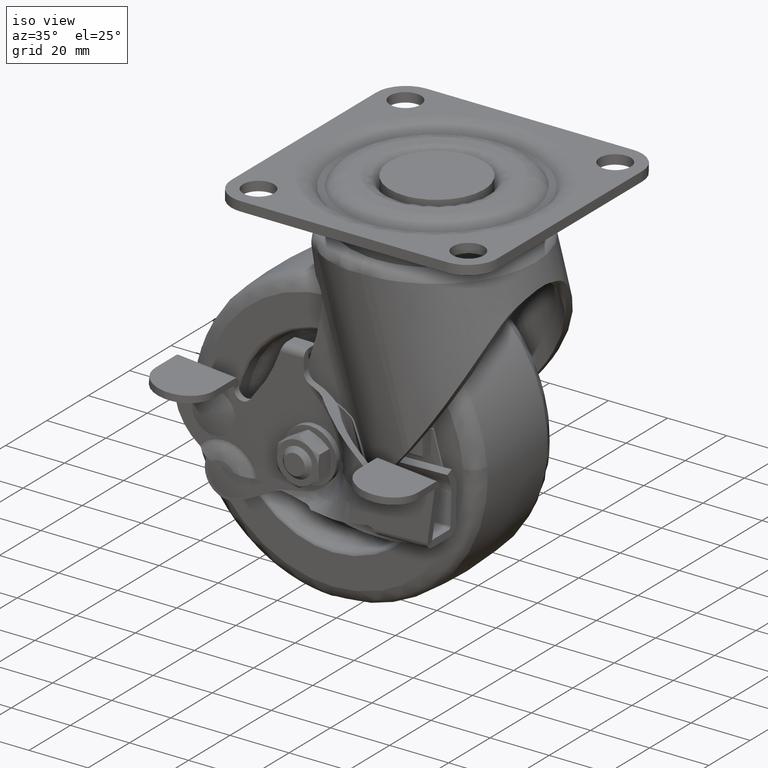
[diagram: clean part render]
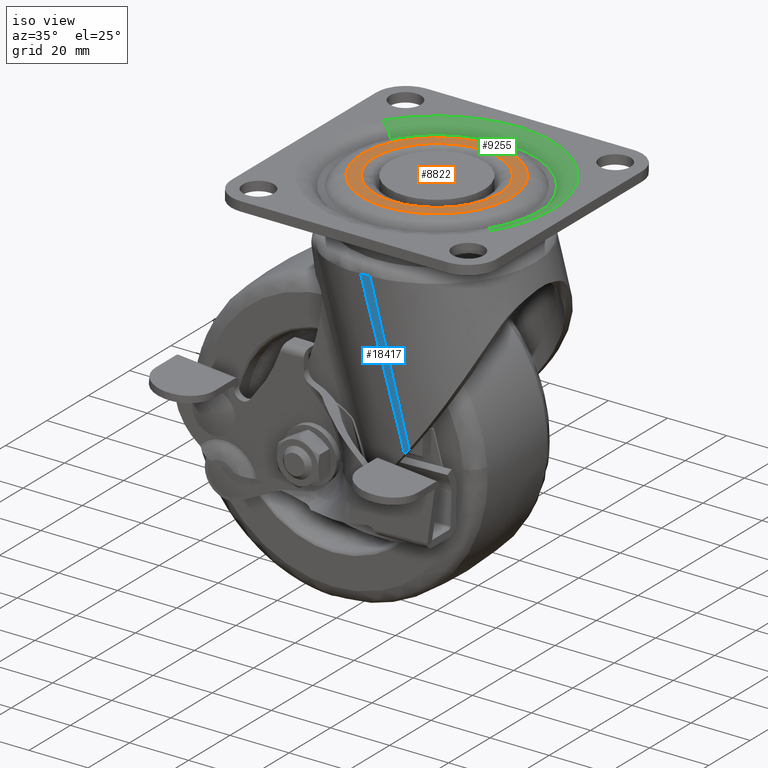
[diagram: same view with three faces highlighted in distinct colors, each labeled with its STEP entity id]
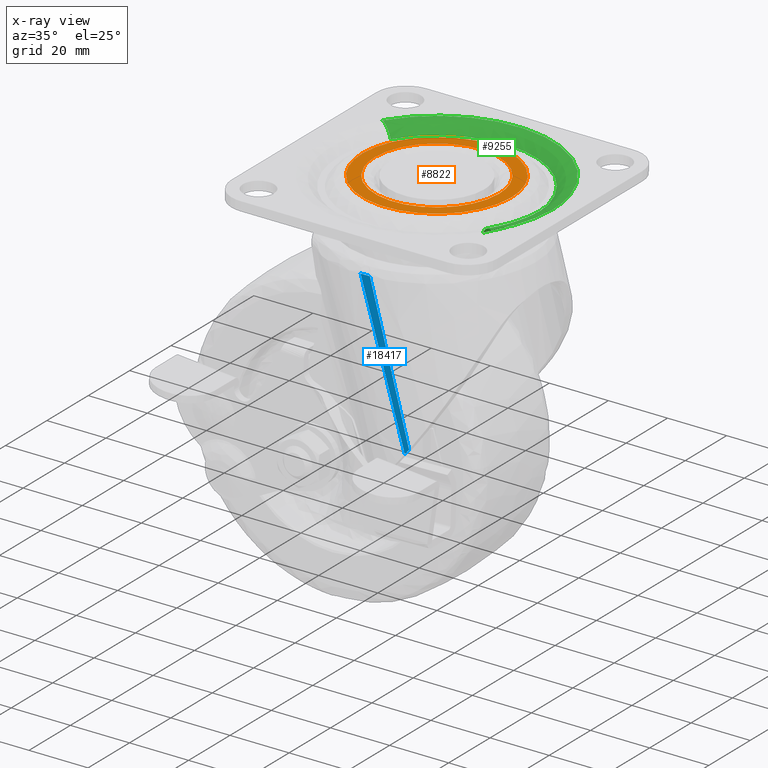
[diagram: x-ray of the same camera — body ghosted, the three highlighted faces saturated]
A machine part, iso view with three faces highlighted in distinct colors.
The next image is the same camera in x-ray (body ghosted, the three faces saturated) — at least one of them is partly hidden behind the body in this view.
Their STEP definitions:

[orange] entity #8822 — the highlighted face is a freeform B-spline surface patch.
#7449=CARTESIAN_POINT('',(-20.998341910827659,-0.263886838429477,-8.797906E-016));
#7450=VERTEX_POINT('',#7449);
#7464=CARTESIAN_POINT('',(21.0,0.0,0.0));
#7465=VERTEX_POINT('',#7464);
#7466=CARTESIAN_POINT('',(21.0,0.0,0.0));
#7467=CARTESIAN_POINT('',(21.000340470123440,-1.582852183036293,-2.012000E-019));
#7468=CARTESIAN_POINT('',(20.693760348667968,-4.277813192391644,-6.977961E-018));
#7469=CARTESIAN_POINT('',(19.622175247555720,-7.674736262092711,-2.987197E-017));
#7470=CARTESIAN_POINT('',(18.457045412395988,-10.110609631237409,-5.459901E-017));
#7471=CARTESIAN_POINT('',(17.138981900484779,-12.216745866392889,-8.248622E-017));
#7472=CARTESIAN_POINT('',(15.504323712122570,-14.257777346453430,-1.169967E-016));
#7473=CARTESIAN_POINT('',(13.516830075508460,-16.150682837138930,-1.588786E-016));
#7474=CARTESIAN_POINT('',(11.299809949967820,-17.765940299667019,-2.055320E-016));
#7475=CARTESIAN_POINT('',(9.123051686601087,-18.967439999537088,-2.512876E-016));
#7476=CARTESIAN_POINT('',(6.704426141824369,-19.956667038178779,-3.020817E-016));
#7477=CARTESIAN_POINT('',(3.973562468719367,-20.700826093836799,-3.593841E-016));
#7478=CARTESIAN_POINT('',(1.160346158053566,-21.029395335907999,-4.183569E-016));
#7479=CARTESIAN_POINT('',(-1.795066923534753,-20.984764825345000,-4.802593E-016));
#7480=CARTESIAN_POINT('',(-4.554625148223674,-20.577579910850311,-5.380112E-016));
#7481=CARTESIAN_POINT('',(-7.715291024274290,-19.623517813118792,-6.040934E-016));
#7482=CARTESIAN_POINT('',(-10.578403143397230,-18.243951350766022,-6.638865E-016));
#7483=CARTESIAN_POINT('',(-13.112934370644750,-16.480304085076810,-7.167462E-016));
#7484=CARTESIAN_POINT('',(-15.076482292675889,-14.689847802092750,-7.576418E-016));
#7485=CARTESIAN_POINT('',(-17.093215571332198,-12.354823148691860,-7.995798E-016));
#7486=CARTESIAN_POINT('',(-18.697721574434500,-9.757683225803937,-8.328482E-016));
#7487=CARTESIAN_POINT('',(-19.998883977438140,-6.632366459636898,-8.596928E-016));
#7488=CARTESIAN_POINT('',(-20.775370906447652,-3.640889905430190,-8.755644E-016));
#7489=CARTESIAN_POINT('',(-20.984425712332150,-1.376049642062166,-8.796455E-016));
#7490=CARTESIAN_POINT('',(-20.998341910827659,-0.263886838429477,-8.797906E-016));
#7491=B_SPLINE_CURVE_WITH_KNOTS('',3,(#7466,#7467,#7468,#7469,#7470,#7471,#7472,#7473,#7474,#7475,#7476,#7477,#7478,#7479,#7480,#7481,#7482,#7483,#7484,#7485,#7486,#7487,#7488,#7489,#7490),.UNSPECIFIED.,.F.,.U.,(4,1,1,1,1,1,1,1,1,1,1,1,1,1,1,1,1,1,1,1,1,1,4),(0.000000232163828,4.748472033081185,8.085356106301362,10.652147347277850,12.833916346566630,15.529036308326230,18.480848366206128,21.047632366665631,23.742794634817130,25.924533982661291,28.876383968265120,32.213173874559331,34.394817948937281,37.731658902993573,40.555164951282421,44.276979912988480,47.228813171710733,49.795599741003592,52.234049125721903,56.469260823186453,58.907739369194303,62.372906190163107,65.709654183953845),.UNSPECIFIED.);
#7492=EDGE_CURVE('',#7465,#7450,#7491,.T.);
#7494=CARTESIAN_POINT('',(20.998341910827659,0.263886838429483,-1.005475E-015));
#7495=VERTEX_POINT('',#7494);
#7496=CARTESIAN_POINT('',(20.998341910827662,0.263886838429483,-1.005475E-015));
#7497=CARTESIAN_POINT('',(20.999999991280667,0.131948628269289,-5.027375E-016));
#7498=CARTESIAN_POINT('',(21.0,0.0,0.0));
#7506=(BOUNDED_CURVE()B_SPLINE_CURVE(2,(#7496,#7497,#7498),.UNSPECIFIED.,.F.,.U.)B_SPLINE_CURVE_WITH_KNOTS((3,3),(0.497784295912530,0.500000000000000),.UNSPECIFIED.)CURVE()GEOMETRIC_REPRESENTATION_ITEM()RATIONAL_B_SPLINE_CURVE((0.994854295622842,0.997404141191531,1.0))REPRESENTATION_ITEM(''));
#7507=EDGE_CURVE('',#7495,#7465,#7506,.T.);
#7551=CARTESIAN_POINT('',(-21.0,0.0,0.0));
#7552=VERTEX_POINT('',#7551);
#7553=CARTESIAN_POINT('',(-21.0,0.0,0.0));
#7554=CARTESIAN_POINT('',(-21.000293822246189,1.582835369329330,-2.310571E-019));
#7555=CARTESIAN_POINT('',(-20.674417034114679,4.448953576594514,-8.463632E-018));
#7556=CARTESIAN_POINT('',(-19.493060333948570,8.040069956635159,-3.728535E-017));
#7557=CARTESIAN_POINT('',(-18.182915891084289,10.596026017381050,-6.903452E-017));
#7558=CARTESIAN_POINT('',(-16.783937716225608,12.700491008084120,-1.028424E-016));
#7559=CARTESIAN_POINT('',(-15.231975516932589,14.532592854013840,-1.402718E-016));
#7560=CARTESIAN_POINT('',(-13.343614115524950,16.276860926546011,-1.857413E-016));
#7561=CARTESIAN_POINT('',(-11.161256932879461,17.866885939597310,-2.382259E-016));
#7562=CARTESIAN_POINT('',(-8.249717845907558,19.428044808505408,-3.081626E-016));
#7563=CARTESIAN_POINT('',(-4.779155866870078,20.570304032469100,-3.914193E-016));
#7564=CARTESIAN_POINT('',(-0.864718752161397,21.100447719358769,-4.852102E-016));
#7565=CARTESIAN_POINT('',(2.484046218915255,20.937185041552478,-5.653546E-016));
#7566=CARTESIAN_POINT('',(5.926216661442997,20.233981105766460,-6.476540E-016));
#7567=CARTESIAN_POINT('',(8.828852719647221,19.160353318606099,-7.169813E-016));
#7568=CARTESIAN_POINT('',(11.769524746378940,17.479234073435901,-7.871277E-016));
#7569=CARTESIAN_POINT('',(14.508914701881331,15.340655524201370,-8.523867E-016));
#7570=CARTESIAN_POINT('',(16.768727015007581,12.803213876658580,-9.061047E-016));
#7571=CARTESIAN_POINT('',(18.300196982350158,10.374052141658391,-9.424025E-016));
#7572=CARTESIAN_POINT('',(19.482887505917692,7.997647121514292,-9.703585E-016));
#7573=CARTESIAN_POINT('',(20.607412490782529,4.751063131529828,-9.967911E-016));
#7574=CARTESIAN_POINT('',(20.978248730583729,1.889403945957795,-1.005238E-015));
#7575=CARTESIAN_POINT('',(20.998341910827659,0.263886838429483,-1.005475E-015));
#7576=B_SPLINE_CURVE_WITH_KNOTS('',3,(#7553,#7554,#7555,#7556,#7557,#7558,#7559,#7560,#7561,#7562,#7563,#7564,#7565,#7566,#7567,#7568,#7569,#7570,#7571,#7572,#7573,#7574,#7575),.UNSPECIFIED.,.F.,.U.,(4,1,1,1,1,1,1,1,1,1,1,1,1,1,1,1,1,1,1,1,4),(0.000000232211534,4.748472033123669,8.598673611649808,11.293840704446991,13.347256093038130,16.170736711396660,18.480848366233911,21.047632366691470,24.256120299416761,28.362976603786830,31.956537843519289,36.063292714070677,38.373344780595552,42.480257873624780,45.303714383167012,48.512205092274300,52.875743762413883,55.442524389548652,57.110952621737113,60.832787255361083,65.709654183953887),.UNSPECIFIED.);
#7577=EDGE_CURVE('',#7552,#7495,#7576,.T.);
#7579=CARTESIAN_POINT('',(-20.998341910827662,-0.263886838429477,-8.797906E-016));
#7580=CARTESIAN_POINT('',(-20.999999991280657,-0.131948628269287,-4.398953E-016));
#7581=CARTESIAN_POINT('',(-21.0,0.0,0.0));
#7589=(BOUNDED_CURVE()B_SPLINE_CURVE(2,(#7579,#7580,#7581),.UNSPECIFIED.,.F.,.U.)B_SPLINE_CURVE_WITH_KNOTS((3,3),(0.997784295912530,1.0),.UNSPECIFIED.)CURVE()GEOMETRIC_REPRESENTATION_ITEM()RATIONAL_B_SPLINE_CURVE((0.994854295622842,0.997404141191531,1.0))REPRESENTATION_ITEM(''));
#7590=EDGE_CURVE('',#7450,#7552,#7589,.T.);
#8727=CARTESIAN_POINT('',(-27.740824858823451,27.732066144962079,0.0));
#8728=CARTESIAN_POINT('',(27.740826211795369,27.732066144962069,0.0));
#8729=CARTESIAN_POINT('',(-27.740824858823451,-27.732065243265520,0.0));
#8730=CARTESIAN_POINT('',(27.740826211795369,-27.732065243265520,0.0));
#8731=B_SPLINE_SURFACE_WITH_KNOTS('',1,1,((#8727,#8729),(#8728,#8730)),.UNSPECIFIED.,.F.,.F.,.U.,(2,2),(2,2),(0.0,55.481651070618817),(0.0,55.464131388227592),.UNSPECIFIED.);
#8732=CARTESIAN_POINT('',(-25.221224617320399,0.0,0.0));
#8733=VERTEX_POINT('',#8732);
#8734=CARTESIAN_POINT('',(-21.294984259940460,-13.514207952259239,-1.340272E-015));
#8735=VERTEX_POINT('',#8734);
#8736=CARTESIAN_POINT('',(-25.221224617320399,0.0,0.0));
#8737=CARTESIAN_POINT('',(-25.221224617409874,-7.327443111057485,-6.701361E-016));
#8738=CARTESIAN_POINT('',(-21.294984259940467,-13.514207952259239,-1.340272E-015));
#8746=(BOUNDED_CURVE()B_SPLINE_CURVE(2,(#8736,#8737,#8738),.UNSPECIFIED.,.F.,.U.)B_SPLINE_CURVE_WITH_KNOTS((3,3),(0.0,0.091683542668401),.UNSPECIFIED.)CURVE()GEOMETRIC_REPRESENTATION_ITEM()RATIONAL_B_SPLINE_CURVE((1.0,0.892586048302526,0.863956829594148))REPRESENTATION_ITEM(''));
#8747=EDGE_CURVE('',#8733,#8735,#8746,.T.);
#8748=ORIENTED_EDGE('',*,*,#8747,.T.);
#8749=CARTESIAN_POINT('',(25.221224617320399,0.0,0.0));
#8750=VERTEX_POINT('',#8749);
#8751=CARTESIAN_POINT('',(-21.294984259940460,-13.514207952259239,-1.340272E-015));
#8752=CARTESIAN_POINT('',(-20.207434167089311,-15.228809645810349,-1.324611E-015));
#8753=CARTESIAN_POINT('',(-17.884966557735289,-18.063198521740361,-1.284782E-015));
#8754=CARTESIAN_POINT('',(-14.215896930790279,-20.959176454444009,-1.209649E-015));
#8755=CARTESIAN_POINT('',(-11.149917103198771,-22.682945126897959,-1.141492E-015));
#8756=CARTESIAN_POINT('',(-8.300626860666466,-23.884342340628429,-1.075059E-015));
#8757=CARTESIAN_POINT('',(-5.199592980182760,-24.761842211337331,-9.994373E-016));
#8758=CARTESIAN_POINT('',(-2.049786430124818,-25.197253189320350,-9.191070E-016));
#8759=CARTESIAN_POINT('',(1.253132151830375,-25.260518552156110,-8.318358E-016));
#8760=CARTESIAN_POINT('',(4.416276243155769,-24.913885367357949,-7.451142E-016));
#8761=CARTESIAN_POINT('',(8.196212528934982,-23.958760157093469,-6.373071E-016));
#8762=CARTESIAN_POINT('',(11.755548976180011,-22.449804963642599,-5.310862E-016));
#8763=CARTESIAN_POINT('',(15.185085940779780,-20.253718642992990,-4.230098E-016));
#8764=CARTESIAN_POINT('',(17.772435323119780,-17.993673464256389,-3.368170E-016));
#8765=CARTESIAN_POINT('',(19.990672021515689,-15.487537953110470,-2.585318E-016));
#8766=CARTESIAN_POINT('',(21.663640064472329,-13.035538794203241,-1.951526E-016));
#8767=CARTESIAN_POINT('',(23.124803310914089,-10.215020243721050,-1.345563E-016));
#8768=CARTESIAN_POINT('',(24.199466997948150,-7.357831827063614,-8.394642E-017));
#8769=CARTESIAN_POINT('',(25.016998703726120,-3.849228993522520,-3.514006E-017));
#8770=CARTESIAN_POINT('',(25.221338024300159,-1.395896573652002,-1.077246E-017));
#8771=CARTESIAN_POINT('',(25.221224617320399,0.0,0.0));
#8772=B_SPLINE_CURVE_WITH_KNOTS('',3,(#8751,#8752,#8753,#8754,#8755,#8756,#8757,#8758,#8759,#8760,#8761,#8762,#8763,#8764,#8765,#8766,#8767,#8768,#8769,#8770,#8771),.UNSPECIFIED.,.F.,.U.,(4,1,1,1,1,1,1,1,1,1,1,1,1,1,1,1,1,1,4),(0.000000172696105,6.091187145825103,10.913379434503859,13.958971157454069,16.623911694112611,20.177115806103711,23.603414671793502,26.141223713291399,30.075133028191662,33.120740595634473,37.816057122498833,41.623065395223733,45.303174205560069,48.094982404370271,51.648189441728597,54.186197203156368,57.612498911306830,60.784941393616371,64.972615990855275),.UNSPECIFIED.);
#8773=EDGE_CURVE('',#8735,#8750,#8772,.T.);
#8774=ORIENTED_EDGE('',*,*,#8773,.T.);
#8775=CARTESIAN_POINT('',(21.294984259940460,13.514207952259250,-1.218429E-015));
#8776=VERTEX_POINT('',#8775);
#8777=CARTESIAN_POINT('',(25.221224617320399,0.0,0.0));
#8778=CARTESIAN_POINT('',(25.221224617409874,7.327443111057486,-6.092146E-016));
#8779=CARTESIAN_POINT('',(21.294984259940456,13.514207952259241,-1.218429E-015));
#8787=(BOUNDED_CURVE()B_SPLINE_CURVE(2,(#8777,#8778,#8779),.UNSPECIFIED.,.F.,.U.)B_SPLINE_CURVE_WITH_KNOTS((3,3),(0.500000000000000,0.591683542668401),.UNSPECIFIED.)CURVE()GEOMETRIC_REPRESENTATION_ITEM()RATIONAL_B_SPLINE_CURVE((1.0,0.892586048302526,0.863956829594147))REPRESENTATION_ITEM(''));
#8788=EDGE_CURVE('',#8750,#8776,#8787,.T.);
#8789=ORIENTED_EDGE('',*,*,#8788,.T.);
#8790=CARTESIAN_POINT('',(21.294984259940460,13.514207952259250,-1.218429E-015));
#8791=CARTESIAN_POINT('',(20.615083547976042,14.585698184669260,-1.209526E-015));
#8792=CARTESIAN_POINT('',(19.245218870741581,16.421665646762019,-1.189321E-015));
#8793=CARTESIAN_POINT('',(16.631106506780430,19.081227072066739,-1.144841E-015));
#8794=CARTESIAN_POINT('',(13.754113366948770,21.259612838293570,-1.090635E-015));
#8795=CARTESIAN_POINT('',(10.806063269036430,22.849472804713120,-1.030582E-015));
#8796=CARTESIAN_POINT('',(8.015699578232711,23.968518372961618,-9.710347E-016));
#8797=CARTESIAN_POINT('',(4.748010242131242,24.875549920543168,-8.984694E-016));
#8798=CARTESIAN_POINT('',(1.077162905011567,25.298572092331771,-8.127693E-016));
#8799=CARTESIAN_POINT('',(-2.988604101745370,25.141047875177211,-7.134559E-016));
#8800=CARTESIAN_POINT('',(-6.950358452383212,24.380640013717230,-6.124241E-016));
#8801=CARTESIAN_POINT('',(-10.757252199037840,22.922529132705598,-5.102367E-016));
#8802=CARTESIAN_POINT('',(-13.775097504230249,21.197605683039939,-4.252363E-016));
#8803=CARTESIAN_POINT('',(-16.498353252511141,19.180839574870259,-3.453036E-016));
#8804=CARTESIAN_POINT('',(-19.049831679992181,16.690381665175440,-2.661959E-016));
#8805=CARTESIAN_POINT('',(-21.250781834216230,13.727902938062529,-1.922427E-016));
#8806=CARTESIAN_POINT('',(-23.048992541947779,10.460886893197390,-1.258805E-016));
#8807=CARTESIAN_POINT('',(-24.132734764364081,7.557356900185794,-7.932703E-017));
#8808=CARTESIAN_POINT('',(-24.996277040869408,3.933778114479755,-3.303937E-017));
#8809=CARTESIAN_POINT('',(-25.221465537014151,1.649692804000249,-1.157111E-017));
#8810=CARTESIAN_POINT('',(-25.221224617320399,0.0,0.0));
#8811=B_SPLINE_CURVE_WITH_KNOTS('',3,(#8790,#8791,#8792,#8793,#8794,#8795,#8796,#8797,#8798,#8799,#8800,#8801,#8802,#8803,#8804,#8805,#8806,#8807,#8808,#8809,#8810),.UNSPECIFIED.,.F.,.U.,(4,1,1,1,1,1,1,1,1,1,1,1,1,1,1,1,1,1,4),(0.000000172700652,3.806989552141488,6.852586791036977,11.167171802431250,14.593501808249220,16.877704849599240,20.177115806109661,24.745435326175478,27.917876899288490,32.359363678383019,36.800888246704233,40.100283887726057,42.765172755099151,46.952876375915338,50.759874364435518,53.805466290053253,58.120062524240410,60.023603979925447,64.972615990855289),.UNSPECIFIED.);
#8812=EDGE_CURVE('',#8776,#8733,#8811,.T.);
#8813=ORIENTED_EDGE('',*,*,#8812,.T.);
#8814=EDGE_LOOP('',(#8748,#8774,#8789,#8813));
#8815=FACE_OUTER_BOUND('',#8814,.T.);
#8816=ORIENTED_EDGE('',*,*,#7492,.T.);
#8817=ORIENTED_EDGE('',*,*,#7590,.T.);
#8818=ORIENTED_EDGE('',*,*,#7577,.T.);
#8819=ORIENTED_EDGE('',*,*,#7507,.T.);
#8820=EDGE_LOOP('',(#8816,#8817,#8818,#8819));
#8821=FACE_BOUND('',#8820,.T.);
#8822=ADVANCED_FACE('',(#8815,#8821),#8731,.F.);

[blue] entity #18417 — the highlighted face is a freeform B-spline surface patch.
#18370=CARTESIAN_POINT('',(-3.793676026061991,-32.649999999999999,-15.745984084465659));
#18371=CARTESIAN_POINT('',(-3.793676026061991,-32.649999999999999,-72.178958562413541));
#18372=CARTESIAN_POINT('',(14.276322456446151,-32.649999999999999,-15.745984084465659));
#18373=CARTESIAN_POINT('',(14.276322456446151,-32.649999999999999,-72.178958562413541));
#18374=B_SPLINE_SURFACE_WITH_KNOTS('',1,1,((#18370,#18372),(#18371,#18373)),.UNSPECIFIED.,.F.,.F.,.U.,(2,2),(2,2),(0.0,56.432974477947880),(0.0,18.069998482508151),.UNSPECIFIED.);
#18375=CARTESIAN_POINT('',(13.455705259406781,-32.649999999999999,-67.802231223615095));
#18376=VERTEX_POINT('',#18375);
#18377=CARTESIAN_POINT('',(0.193971008628356,-32.649999999999999,-18.308787001449801));
#18378=VERTEX_POINT('',#18377);
#18379=CARTESIAN_POINT('',(13.455705259406781,-32.649999999999999,-67.802231223615095));
#18380=CARTESIAN_POINT('',(0.193971008628356,-32.649999999999999,-18.308787001449801));
#18381=QUASI_UNIFORM_CURVE('',1,(#18379,#18380),.UNSPECIFIED.,.F.,.U.);
#18382=EDGE_CURVE('',#18376,#18378,#18381,.T.);
#18383=ORIENTED_EDGE('',*,*,#18382,.T.);
#18384=CARTESIAN_POINT('',(-2.973059269676420,-32.649999999999999,-18.338955509171949));
#18385=VERTEX_POINT('',#18384);
#18386=CARTESIAN_POINT('',(0.193971008628356,-32.649999999999999,-18.308787001449801));
#18387=CARTESIAN_POINT('',(-0.333915062746067,-32.650000000000013,-18.308010425836699));
#18388=CARTESIAN_POINT('',(-0.861774853311601,-32.650000000000013,-18.310486092569199));
#18389=CARTESIAN_POINT('',(-1.917448290048725,-32.649999999999991,-18.321147781169561));
#18390=CARTESIAN_POINT('',(-2.445266797106990,-32.649999999999999,-18.329327419740199));
#18391=CARTESIAN_POINT('',(-2.973059269676365,-32.649999999999999,-18.338955509171999));
#18392=B_SPLINE_CURVE_WITH_KNOTS('',3,(#18386,#18387,#18388,#18389,#18390,#18391),.UNSPECIFIED.,.F.,.U.,(4,2,4),(0.0,0.500000000000000,1.0),.UNSPECIFIED.);
#18393=EDGE_CURVE('',#18378,#18385,#18392,.T.);
#18394=ORIENTED_EDGE('',*,*,#18393,.T.);
#18395=CARTESIAN_POINT('',(12.006281728386600,-32.649999999999999,-69.616154288712309));
#18396=VERTEX_POINT('',#18395);
#18397=CARTESIAN_POINT('',(-2.973059269676420,-32.649999999999999,-18.338955509171949));
#18398=CARTESIAN_POINT('',(12.006281728386600,-32.649999999999999,-69.616154288712309));
#18399=QUASI_UNIFORM_CURVE('',1,(#18397,#18398),.UNSPECIFIED.,.F.,.U.);
#18400=EDGE_CURVE('',#18385,#18396,#18399,.T.);
#18401=ORIENTED_EDGE('',*,*,#18400,.T.);
#18402=CARTESIAN_POINT('',(12.006281728386570,-32.649999999999999,-69.616154288712281));
#18403=CARTESIAN_POINT('',(12.739917059264450,-32.650000000000006,-68.716323171931577));
#18404=CARTESIAN_POINT('',(13.455705259406770,-32.649999999999999,-67.802231223615081));
#18412=(BOUNDED_CURVE()B_SPLINE_CURVE(2,(#18402,#18403,#18404),.UNSPECIFIED.,.F.,.U.)CURVE()GEOMETRIC_REPRESENTATION_ITEM()QUASI_UNIFORM_CURVE()RATIONAL_B_SPLINE_CURVE((1.0,0.999951600869677,1.0))REPRESENTATION_ITEM(''));
#18413=EDGE_CURVE('',#18396,#18376,#18412,.T.);
#18414=ORIENTED_EDGE('',*,*,#18413,.T.);
#18415=EDGE_LOOP('',(#18383,#18394,#18401,#18414));
#18416=FACE_OUTER_BOUND('',#18415,.T.);
#18417=ADVANCED_FACE('',(#18416),#18374,.T.);

[green] entity #9255 — the highlighted face is a freeform B-spline surface patch.
#8993=CARTESIAN_POINT('',(28.073903523258100,-17.816240933295472,-3.199999999384958));
#8994=VERTEX_POINT('',#8993);
#9024=CARTESIAN_POINT('',(33.250000000000000,0.0,-3.200000000000000));
#9025=VERTEX_POINT('',#9024);
#9026=CARTESIAN_POINT('',(33.250000000000000,0.0,-3.200000000000000));
#9027=CARTESIAN_POINT('',(33.250000000167823,-9.660017986462520,-3.199999999692479));
#9028=CARTESIAN_POINT('',(28.073903523258092,-17.816240933295475,-3.199999999384958));
#9036=(BOUNDED_CURVE()B_SPLINE_CURVE(2,(#9026,#9027,#9028),.UNSPECIFIED.,.F.,.U.)B_SPLINE_CURVE_WITH_KNOTS((3,3),(0.500000000000000,0.591683542668558),.UNSPECIFIED.)CURVE()GEOMETRIC_REPRESENTATION_ITEM()RATIONAL_B_SPLINE_CURVE((1.0,0.892586048302342,0.863956829594050))REPRESENTATION_ITEM(''));
#9037=EDGE_CURVE('',#9025,#8994,#9036,.T.);
#9039=CARTESIAN_POINT('',(-28.073903523258089,17.816240933295479,-3.199999999384958));
#9040=VERTEX_POINT('',#9039);
#9041=CARTESIAN_POINT('',(-28.073903523258089,17.816240933295479,-3.199999999384958));
#9042=CARTESIAN_POINT('',(-26.849107258230859,19.746936406022250,-3.199999999391100));
#9043=CARTESIAN_POINT('',(-24.867713161610400,22.253997536689390,-3.199999999402663));
#9044=CARTESIAN_POINT('',(-21.708561128472969,25.249059588864061,-3.199999999423877));
#9045=CARTESIAN_POINT('',(-18.458601419772592,27.801428812705449,-3.199999999447031));
#9046=CARTESIAN_POINT('',(-13.937837047291710,30.388569679374470,-3.199999999481957));
#9047=CARTESIAN_POINT('',(-8.657513356747733,32.248180966671143,-3.199999999525744));
#9048=CARTESIAN_POINT('',(-4.037540426989213,33.089467240766943,-3.199999999566224));
#9049=CARTESIAN_POINT('',(0.143904118578630,33.327542375149079,-3.199999999604261));
#9050=CARTESIAN_POINT('',(4.383123486582925,33.067148225000253,-3.199999999644168));
#9051=CARTESIAN_POINT('',(9.260538509249153,32.079935485012541,-3.199999999691912));
#9052=CARTESIAN_POINT('',(13.925635065397380,30.333475461873292,-3.199999999739806));
#9053=CARTESIAN_POINT('',(18.610099680980390,27.718351772775009,-3.199999999790126));
#9054=CARTESIAN_POINT('',(22.355017537793881,24.780984564110270,-3.199999999832579));
#9055=CARTESIAN_POINT('',(25.923445726294162,21.005604321689049,-3.199999999875953));
#9056=CARTESIAN_POINT('',(28.438120258732951,17.437003622986602,-3.199999999908573));
#9057=CARTESIAN_POINT('',(30.431859081083619,13.564276000144510,-3.199999999937539));
#9058=CARTESIAN_POINT('',(31.966432384112469,9.546183250345868,-3.199999999962211));
#9059=CARTESIAN_POINT('',(33.010027411472457,4.963072791223418,-3.199999999985203));
#9060=CARTESIAN_POINT('',(33.250051515519388,1.561402213937069,-3.199999999994969));
#9061=CARTESIAN_POINT('',(33.250000000000000,0.0,-3.200000000000000));
#9062=B_SPLINE_CURVE_WITH_KNOTS('',3,(#9041,#9042,#9043,#9044,#9045,#9046,#9047,#9048,#9049,#9050,#9051,#9052,#9053,#9054,#9055,#9056,#9057,#9058,#9059,#9060,#9061),.UNSPECIFIED.,.F.,.U.,(4,1,1,1,1,1,1,1,1,1,1,1,1,1,1,1,1,1,4),(0.000000152696984,6.859141785623976,9.535882704593774,13.049107994802680,19.239069835761040,25.094472908298641,29.778782457176138,33.292008513561001,37.641598202951933,42.493207300962467,48.181275650586159,52.530980553857113,58.553643245945047,62.401458791235257,68.089529764534504,71.602757138493473,75.450601329923302,80.971400765259361,85.655614050301324),.UNSPECIFIED.);
#9063=EDGE_CURVE('',#9040,#9025,#9062,.T.);
#9112=CARTESIAN_POINT('',(-33.037517746270510,20.966246304744288,-1.218429E-015));
#9113=VERTEX_POINT('',#9112);
#9114=CARTESIAN_POINT('',(-28.073903523258089,17.816240933295479,-3.199999999384958));
#9115=CARTESIAN_POINT('',(-29.820360379689060,18.924576156695124,-1.287357E-011));
#9116=CARTESIAN_POINT('',(-33.037517746270510,20.966246304744288,-1.218429E-015));
#9124=(BOUNDED_CURVE()B_SPLINE_CURVE(2,(#9114,#9115,#9116),.UNSPECIFIED.,.F.,.U.)B_SPLINE_CURVE_WITH_KNOTS((3,3),(-1.623849345308451,-0.381629915444320),.UNSPECIFIED.)CURVE()GEOMETRIC_REPRESENTATION_ITEM()RATIONAL_B_SPLINE_CURVE((0.912170760361326,0.800738841821910,0.911192055258162))REPRESENTATION_ITEM(''));
#9125=EDGE_CURVE('',#9040,#9113,#9124,.T.);
#9142=CARTESIAN_POINT('',(33.037517746270517,-20.966246304744299,-1.340272E-015));
#9143=VERTEX_POINT('',#9142);
#9169=CARTESIAN_POINT('',(28.073903523258092,-17.816240933295475,-3.199999999384958));
#9170=CARTESIAN_POINT('',(29.820360379689067,-18.924576156695128,-1.286431E-011));
#9171=CARTESIAN_POINT('',(33.037517746270517,-20.966246304744296,-1.340272E-015));
#9179=(BOUNDED_CURVE()B_SPLINE_CURVE(2,(#9169,#9170,#9171),.UNSPECIFIED.,.F.,.U.)B_SPLINE_CURVE_WITH_KNOTS((3,3),(-1.623849345308451,-0.381629915444317),.UNSPECIFIED.)CURVE()GEOMETRIC_REPRESENTATION_ITEM()RATIONAL_B_SPLINE_CURVE((0.912170760361326,0.800738841821909,0.911192055258162))REPRESENTATION_ITEM(''));
#9180=EDGE_CURVE('',#8994,#9143,#9179,.T.);
#9185=CARTESIAN_POINT('',(-27.927344243637709,17.723231586170964,-3.483043601660620));
#9186=CARTESIAN_POINT('',(-10.204112657466739,45.650575829808680,-3.483043601660623));
#9187=CARTESIAN_POINT('',(17.723231586170964,27.927344243637709,-3.483043601660620));
#9188=CARTESIAN_POINT('',(45.650575829808680,10.204112657466743,-3.483043601660623));
#9189=CARTESIAN_POINT('',(27.927344243637720,-17.723231586170964,-3.483043601660620));
#9190=CARTESIAN_POINT('',(-29.731409241718012,18.868126047976673,0.193997929824622));
#9191=CARTESIAN_POINT('',(-10.863283193741331,48.599535289694671,0.193997929824622));
#9192=CARTESIAN_POINT('',(18.868126047976673,29.731409241718012,0.193997929824622));
#9193=CARTESIAN_POINT('',(48.599535289694671,10.863283193741335,0.193997929824622));
#9194=CARTESIAN_POINT('',(29.731409241718012,-18.868126047976673,0.193997929824622));
#9195=CARTESIAN_POINT('',(-33.318094854310381,21.144305951951743,-0.007892217042416));
#9196=CARTESIAN_POINT('',(-12.173788902358632,54.462400806262117,-0.007892217042416));
#9197=CARTESIAN_POINT('',(21.144305951951743,33.318094854310381,-0.007892217042416));
#9198=CARTESIAN_POINT('',(54.462400806262117,12.173788902358638,-0.007892217042416));
#9199=CARTESIAN_POINT('',(33.318094854310381,-21.144305951951743,-0.007892217042416));
#9207=(BOUNDED_SURFACE()B_SPLINE_SURFACE(2,2,((#9185,#9190,#9195),(#9186,#9191,#9196),(#9187,#9192,#9197),(#9188,#9193,#9198),(#9189,#9194,#9199)),.UNSPECIFIED.,.F.,.F.,.U.)B_SPLINE_SURFACE_WITH_KNOTS((3,2,3),(3,3),(0.0,65.381264052745820,130.762528105491610),(0.0,7.838895993937537),.UNSPECIFIED.)GEOMETRIC_REPRESENTATION_ITEM()RATIONAL_B_SPLINE_SURFACE(((0.923856422653232,0.789102070349369,0.922779935982609),(0.653265141300846,0.557979424992383,0.652503950276191),(0.923856422653232,0.789102070349369,0.922779935982609),(0.653265141300846,0.557979424992383,0.652503950276191),(0.923856422653232,0.789102070349369,0.922779935982609)))REPRESENTATION_ITEM('')SURFACE());
#9208=ORIENTED_EDGE('',*,*,#9037,.T.);
#9209=ORIENTED_EDGE('',*,*,#9180,.T.);
#9210=CARTESIAN_POINT('',(39.128775382679599,0.0,0.0));
#9211=VERTEX_POINT('',#9210);
#9212=CARTESIAN_POINT('',(39.128775382679599,0.0,0.0));
#9213=CARTESIAN_POINT('',(39.128775382669623,-11.367960119694494,-6.701361E-016));
#9214=CARTESIAN_POINT('',(33.037517746270524,-20.966246304744296,-1.340272E-015));
#9222=(BOUNDED_CURVE()B_SPLINE_CURVE(2,(#9212,#9213,#9214),.UNSPECIFIED.,.F.,.U.)B_SPLINE_CURVE_WITH_KNOTS((3,3),(0.500000000000000,0.591683542668403),.UNSPECIFIED.)CURVE()GEOMETRIC_REPRESENTATION_ITEM()RATIONAL_B_SPLINE_CURVE((1.0,0.892586048302524,0.863956829594146))REPRESENTATION_ITEM(''));
#9223=EDGE_CURVE('',#9211,#9143,#9222,.T.);
#9224=ORIENTED_EDGE('',*,*,#9223,.F.);
#9225=CARTESIAN_POINT('',(-33.037517746270510,20.966246304744288,-1.218429E-015));
#9226=CARTESIAN_POINT('',(-31.877254212706521,22.794841618606149,-1.208636E-015));
#9227=CARTESIAN_POINT('',(-29.808790803291469,25.523749750091920,-1.188775E-015));
#9228=CARTESIAN_POINT('',(-25.930214458370269,29.449828197745578,-1.146146E-015));
#9229=CARTESIAN_POINT('',(-22.039008143855231,32.489654342199429,-1.099313E-015));
#9230=CARTESIAN_POINT('',(-17.480558724580799,35.113381313389013,-1.040208E-015));
#9231=CARTESIAN_POINT('',(-12.518315271569570,37.220537193959522,-9.724798E-016));
#9232=CARTESIAN_POINT('',(-7.420333942436904,38.552843125302537,-8.991334E-016));
#9233=CARTESIAN_POINT('',(-2.784505878288496,39.086911933695532,-8.293718E-016));
#9234=CARTESIAN_POINT('',(1.154828416365573,39.172238464740893,-7.684243E-016));
#9235=CARTESIAN_POINT('',(6.005948740040730,38.813190478293230,-6.912708E-016));
#9236=CARTESIAN_POINT('',(11.019149217666889,37.679656573945408,-6.080905E-016));
#9237=CARTESIAN_POINT('',(15.506505768042960,35.986605872074563,-5.305665E-016));
#9238=CARTESIAN_POINT('',(19.403414339025929,34.085955432847747,-4.612963E-016));
#9239=CARTESIAN_POINT('',(23.054764965309740,31.734947705170459,-3.938123E-016));
#9240=CARTESIAN_POINT('',(26.846272228726850,28.587735962420091,-3.205445E-016));
#9241=CARTESIAN_POINT('',(29.753308871323089,25.542966699925248,-2.615109E-016));
#9242=CARTESIAN_POINT('',(32.810802408740962,21.513266026445329,-1.956796E-016));
#9243=CARTESIAN_POINT('',(35.409977552523962,17.008071119558782,-1.348332E-016));
#9244=CARTESIAN_POINT('',(37.312463653237486,12.099909206526389,-8.301117E-017));
#9245=CARTESIAN_POINT('',(38.737625363399090,6.496701893491511,-3.547687E-017));
#9246=CARTESIAN_POINT('',(39.129136031799931,2.625026084822789,-1.186830E-017));
#9247=CARTESIAN_POINT('',(39.128775382679599,0.0,0.0));
#9248=B_SPLINE_CURVE_WITH_KNOTS('',3,(#9225,#9226,#9227,#9228,#9229,#9230,#9231,#9232,#9233,#9234,#9235,#9236,#9237,#9238,#9239,#9240,#9241,#9242,#9243,#9244,#9245,#9246,#9247),.UNSPECIFIED.,.F.,.U.,(4,1,1,1,1,1,1,1,1,1,1,1,1,1,1,1,1,1,1,1,4),(0.000000128482924,6.496872237621773,10.237505388186610,16.537518871914529,21.262508115316169,25.987554130043382,32.681314917647022,37.012507059727866,39.965548626458201,44.493720898569109,51.581183971040659,55.321856072964053,58.865604630790372,64.574970077279829,68.315611397655204,73.631242711053133,77.174998922028436,83.475031356824999,89.184421276295836,92.925004857657072,100.799978418896100),.UNSPECIFIED.);
#9249=EDGE_CURVE('',#9113,#9211,#9248,.T.);
#9250=ORIENTED_EDGE('',*,*,#9249,.F.);
#9251=ORIENTED_EDGE('',*,*,#9125,.F.);
#9252=ORIENTED_EDGE('',*,*,#9063,.T.);
#9253=EDGE_LOOP('',(#9208,#9209,#9224,#9250,#9251,#9252));
#9254=FACE_OUTER_BOUND('',#9253,.T.);
#9255=ADVANCED_FACE('',(#9254),#9207,.T.);